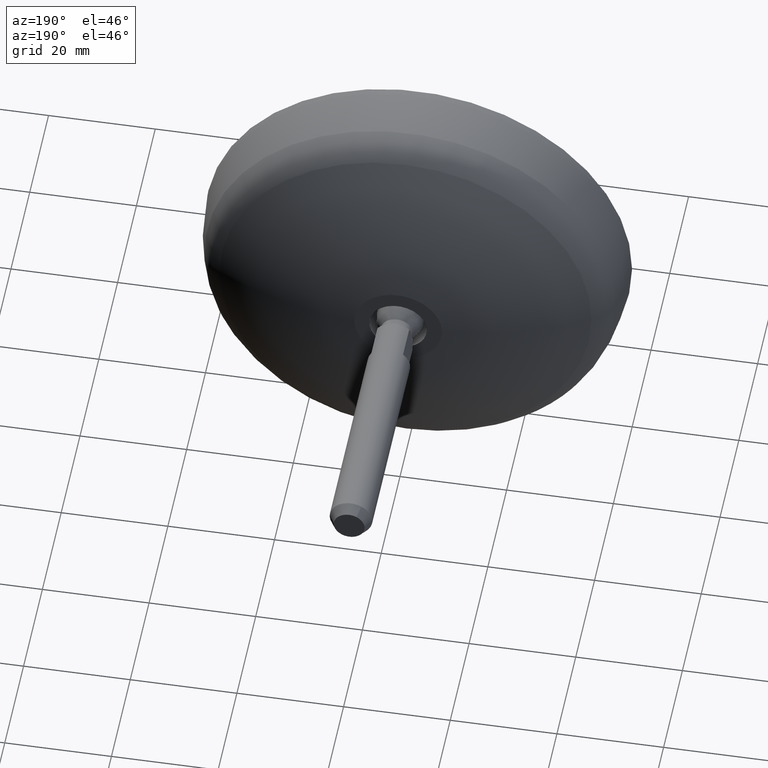
[diagram: clean part render]
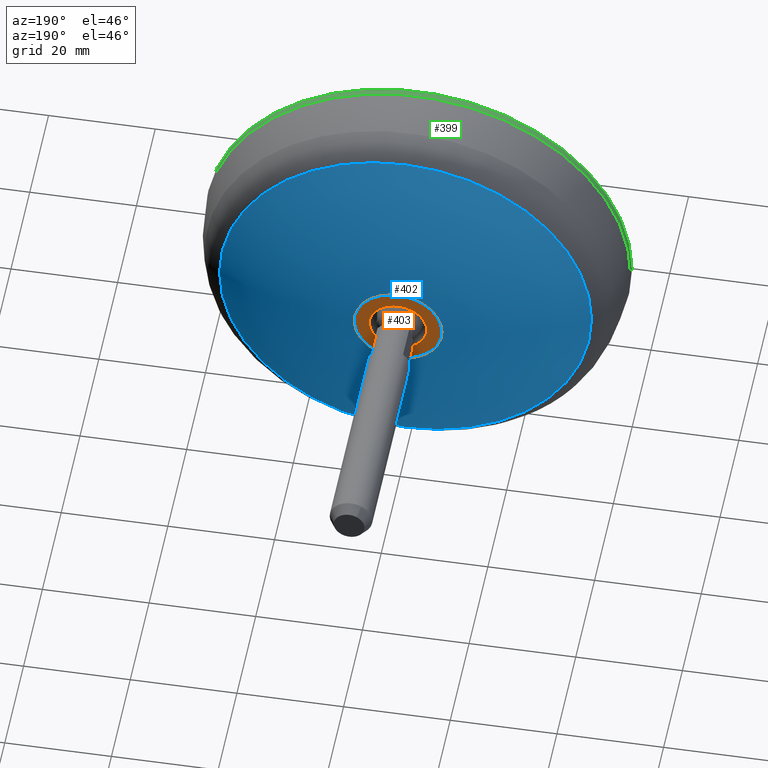
[diagram: same view with three faces highlighted in distinct colors, each labeled with its STEP entity id]
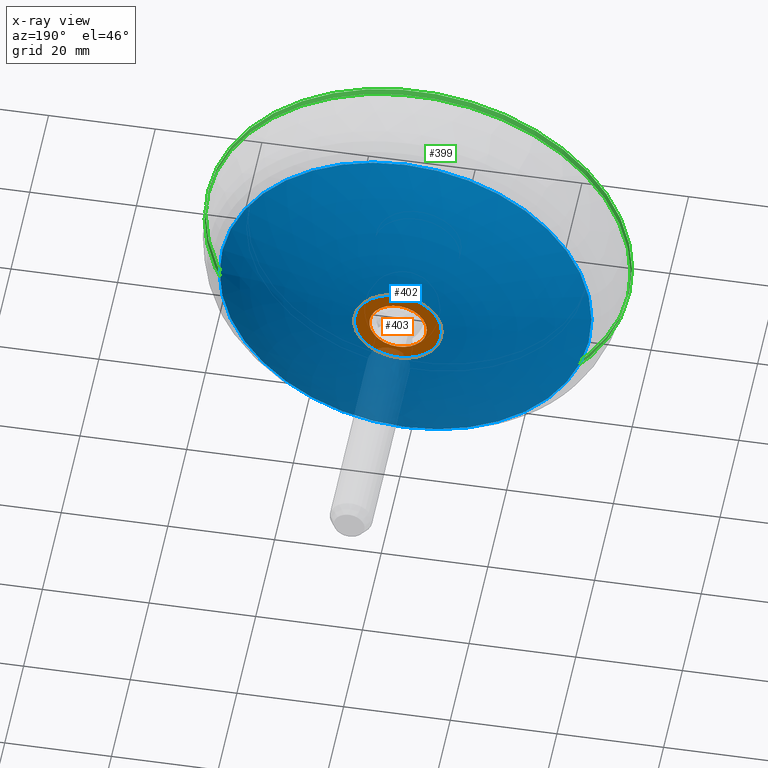
[diagram: x-ray of the same camera — body ghosted, the three highlighted faces saturated]
A machine part, auxiliary view with three faces highlighted in distinct colors.
The next image is the same camera in x-ray (body ghosted, the three faces saturated) — at least one of them is partly hidden behind the body in this view.
Their STEP definitions:

[orange] entity #403 — the highlighted planar face has unit normal (-0, 1, 0).
#75=FACE_BOUND('',#107,.T.);
#82=FACE_OUTER_BOUND('',#106,.T.);
#106=EDGE_LOOP('',(#301,#302));
#107=EDGE_LOOP('',(#303,#304));
#139=CIRCLE('',#482,8.24029769404842);
#140=CIRCLE('',#483,8.24029769404842);
#142=CIRCLE('',#486,5.3823080686156);
#143=CIRCLE('',#487,5.3823080686156);
#180=VERTEX_POINT('',#761);
#181=VERTEX_POINT('',#762);
#182=VERTEX_POINT('',#767);
#183=VERTEX_POINT('',#768);
#226=EDGE_CURVE('',#180,#181,#139,.T.);
#227=EDGE_CURVE('',#181,#180,#140,.T.);
#229=EDGE_CURVE('',#182,#183,#142,.T.);
#230=EDGE_CURVE('',#183,#182,#143,.T.);
#301=ORIENTED_EDGE('',*,*,#226,.T.);
#302=ORIENTED_EDGE('',*,*,#227,.T.);
#303=ORIENTED_EDGE('',*,*,#229,.F.);
#304=ORIENTED_EDGE('',*,*,#230,.F.);
#390=PLANE('',#485);
#403=ADVANCED_FACE('',(#82,#75),#390,.T.);
#482=AXIS2_PLACEMENT_3D('',#763,#568,#569);
#483=AXIS2_PLACEMENT_3D('',#764,#570,#571);
#485=AXIS2_PLACEMENT_3D('',#766,#574,#575);
#486=AXIS2_PLACEMENT_3D('',#769,#576,#577);
#487=AXIS2_PLACEMENT_3D('',#770,#578,#579);
#568=DIRECTION('center_axis',(-1.29031692906312E-13,1.,0.));
#569=DIRECTION('ref_axis',(-1.,-1.2903169675847E-13,0.));
#570=DIRECTION('center_axis',(-1.29031692906312E-13,1.,0.));
#571=DIRECTION('ref_axis',(-1.,-1.2903169675847E-13,0.));
#574=DIRECTION('center_axis',(-1.29031692906312E-13,1.,0.));
#575=DIRECTION('ref_axis',(0.,0.,1.));
#576=DIRECTION('center_axis',(-1.29031692906312E-13,1.,0.));
#577=DIRECTION('ref_axis',(-1.,-1.29031696758471E-13,0.));
#578=DIRECTION('center_axis',(-1.29031692906312E-13,1.,0.));
#579=DIRECTION('ref_axis',(-1.,-1.29031696758471E-13,0.));
#761=CARTESIAN_POINT('',(-8.24029769405126,22.0292874727661,0.));
#762=CARTESIAN_POINT('',(-2.83729285384003E-12,22.0292874727671,-8.24029769404842));
#763=CARTESIAN_POINT('Origin',(-2.8358149179832E-12,22.0292874727671,0.));
#764=CARTESIAN_POINT('Origin',(-2.8358149179832E-12,22.0292874727671,0.));
#766=CARTESIAN_POINT('Origin',(-6.81130288133485,22.0292874727661,0.));
#767=CARTESIAN_POINT('',(-5.38230806861844,22.0292874727661,0.));
#768=CARTESIAN_POINT('',(-2.83648539659409E-12,22.0292874727667,-5.3823080686156));
#769=CARTESIAN_POINT('Origin',(-2.83581491798315E-12,22.0292874727667,0.));
#770=CARTESIAN_POINT('Origin',(-2.83581491798315E-12,22.0292874727667,0.));

[blue] entity #402 — the highlighted face is a freeform B-spline surface patch.
#42=(
BOUNDED_SURFACE()
B_SPLINE_SURFACE(2,2,((#734,#735,#736,#737,#738,#739,#740,#741,#742),(#743,
#744,#745,#746,#747,#748,#749,#750,#751),(#752,#753,#754,#755,#756,#757,
#758,#759,#760)),.UNSPECIFIED.,.F.,.T.,.F.)
B_SPLINE_SURFACE_WITH_KNOTS((3,3),(3,2,2,2,3),(1.0604937002301,1.50279016266621),
(-3.14159265358979,-1.5707963267949,0.,1.5707963267949,3.14159265358979),
 .UNSPECIFIED.)
GEOMETRIC_REPRESENTATION_ITEM()
RATIONAL_B_SPLINE_SURFACE(((1.,0.707106781186548,1.,0.707106781186548,1.,
0.707106781186548,1.,0.707106781186548,1.),(0.975646227991165,0.689886063851629,
0.975646227991165,0.689886063851629,0.975646227991165,0.689886063851629,
0.975646227991165,0.689886063851629,0.975646227991165),(1.,0.707106781186548,
1.,0.707106781186548,1.,0.707106781186548,1.,0.707106781186548,1.)))
REPRESENTATION_ITEM('')
SURFACE()
);
#81=FACE_OUTER_BOUND('',#105,.T.);
#105=EDGE_LOOP('',(#295,#296,#297,#298,#299,#300));
#136=CIRCLE('',#479,34.8694444341819);
#137=CIRCLE('',#480,34.8694444341819);
#139=CIRCLE('',#482,8.24029769404842);
#140=CIRCLE('',#483,8.24029769404842);
#141=CIRCLE('',#484,63.3292106186105);
#178=VERTEX_POINT('',#729);
#179=VERTEX_POINT('',#730);
#180=VERTEX_POINT('',#761);
#181=VERTEX_POINT('',#762);
#223=EDGE_CURVE('',#178,#179,#136,.T.);
#224=EDGE_CURVE('',#179,#178,#137,.T.);
#226=EDGE_CURVE('',#180,#181,#139,.T.);
#227=EDGE_CURVE('',#181,#180,#140,.T.);
#228=EDGE_CURVE('',#181,#179,#141,.T.);
#295=ORIENTED_EDGE('',*,*,#226,.F.);
#296=ORIENTED_EDGE('',*,*,#227,.F.);
#297=ORIENTED_EDGE('',*,*,#228,.T.);
#298=ORIENTED_EDGE('',*,*,#224,.T.);
#299=ORIENTED_EDGE('',*,*,#223,.T.);
#300=ORIENTED_EDGE('',*,*,#228,.F.);
#402=ADVANCED_FACE('',(#81),#42,.F.);
#479=AXIS2_PLACEMENT_3D('',#731,#562,#563);
#480=AXIS2_PLACEMENT_3D('',#732,#564,#565);
#482=AXIS2_PLACEMENT_3D('',#763,#568,#569);
#483=AXIS2_PLACEMENT_3D('',#764,#570,#571);
#484=AXIS2_PLACEMENT_3D('',#765,#572,#573);
#562=DIRECTION('center_axis',(-1.29031692906312E-13,1.,0.));
#563=DIRECTION('ref_axis',(-1.,-1.2903169675847E-13,0.));
#564=DIRECTION('center_axis',(-1.29031692906312E-13,1.,0.));
#565=DIRECTION('ref_axis',(-1.,-1.2903169675847E-13,0.));
#568=DIRECTION('center_axis',(-1.29031692906312E-13,1.,0.));
#569=DIRECTION('ref_axis',(-1.,-1.2903169675847E-13,0.));
#570=DIRECTION('center_axis',(-1.29031692906312E-13,1.,0.));
#571=DIRECTION('ref_axis',(-1.,-1.2903169675847E-13,0.));
#572=DIRECTION('center_axis',(-1.,-1.29031692906312E-13,1.22464679914734E-16));
#573=DIRECTION('ref_axis',(-1.22464679914734E-16,0.,-1.));
#729=CARTESIAN_POINT('',(-34.8694444341837,14.1073263479693,0.));
#730=CARTESIAN_POINT('',(-1.81869971601882E-12,14.1073263479738,-34.8694444341819));
#731=CARTESIAN_POINT('Origin',(-1.81363086291312E-12,14.1073263479738,0.));
#732=CARTESIAN_POINT('Origin',(-1.81363086291312E-12,14.1073263479738,0.));
#734=CARTESIAN_POINT('Ctrl Pts',(-1.81409965335046E-12,14.1073263479738,
-34.8694444341819));
#735=CARTESIAN_POINT('Ctrl Pts',(-34.8694444341837,14.1073263479693,-34.8694444341819));
#736=CARTESIAN_POINT('Ctrl Pts',(-34.8694444341837,14.1073263479693,0.));
#737=CARTESIAN_POINT('Ctrl Pts',(-34.8694444341837,14.1073263479693,34.8694444341819));
#738=CARTESIAN_POINT('Ctrl Pts',(-1.81409965335046E-12,14.1073263479738,
34.8694444341819));
#739=CARTESIAN_POINT('Ctrl Pts',(34.8694444341801,14.1073263479783,34.8694444341819));
#740=CARTESIAN_POINT('Ctrl Pts',(34.8694444341801,14.1073263479783,0.));
#741=CARTESIAN_POINT('Ctrl Pts',(34.8694444341801,14.1073263479783,-34.8694444341819));
#742=CARTESIAN_POINT('Ctrl Pts',(-1.81409965335046E-12,14.1073263479738,
-34.8694444341819));
#743=CARTESIAN_POINT('Ctrl Pts',(-2.71144212204615E-12,21.0617609406226,
-22.4454000280332));
#744=CARTESIAN_POINT('Ctrl Pts',(-22.4454000280359,21.0617609406197,-22.4454000280332));
#745=CARTESIAN_POINT('Ctrl Pts',(-22.4454000280359,21.0617609406197,-5.730158254838E-28));
#746=CARTESIAN_POINT('Ctrl Pts',(-22.4454000280359,21.0617609406197,22.4454000280332));
#747=CARTESIAN_POINT('Ctrl Pts',(-2.71144212204615E-12,21.0617609406226,
22.4454000280332));
#748=CARTESIAN_POINT('Ctrl Pts',(22.4454000280305,21.0617609406255,22.4454000280332));
#749=CARTESIAN_POINT('Ctrl Pts',(22.4454000280305,21.0617609406255,5.730158254838E-28));
#750=CARTESIAN_POINT('Ctrl Pts',(22.4454000280305,21.0617609406255,-22.4454000280332));
#751=CARTESIAN_POINT('Ctrl Pts',(-2.71144212204615E-12,21.0617609406226,
-22.4454000280332));
#752=CARTESIAN_POINT('Ctrl Pts',(-2.83628370842053E-12,22.0292874727671,
-8.24029769404842));
#753=CARTESIAN_POINT('Ctrl Pts',(-8.24029769405125,22.0292874727661,-8.24029769404842));
#754=CARTESIAN_POINT('Ctrl Pts',(-8.24029769405126,22.0292874727661,-1.0097419586829E-27));
#755=CARTESIAN_POINT('Ctrl Pts',(-8.24029769405125,22.0292874727661,8.24029769404842));
#756=CARTESIAN_POINT('Ctrl Pts',(-2.83628370842053E-12,22.0292874727671,
8.24029769404842));
#757=CARTESIAN_POINT('Ctrl Pts',(8.24029769404558,22.0292874727682,8.24029769404842));
#758=CARTESIAN_POINT('Ctrl Pts',(8.24029769404558,22.0292874727682,1.0097419586829E-27));
#759=CARTESIAN_POINT('Ctrl Pts',(8.24029769404558,22.0292874727682,-8.24029769404842));
#760=CARTESIAN_POINT('Ctrl Pts',(-2.83628370842053E-12,22.0292874727671,
-8.24029769404842));
#761=CARTESIAN_POINT('',(-8.24029769405126,22.0292874727661,0.));
#762=CARTESIAN_POINT('',(-2.83729285384003E-12,22.0292874727671,-8.24029769404842));
#763=CARTESIAN_POINT('Origin',(-2.8358149179832E-12,22.0292874727671,0.));
#764=CARTESIAN_POINT('Origin',(-2.8358149179832E-12,22.0292874727671,0.));
#765=CARTESIAN_POINT('Origin',(5.31582082957615E-12,-41.1535358957333,-3.93683992602));

[green] entity #399 — the highlighted conical surface has half-angle 2 deg.
#46=LINE('',#695,#58);
#58=VECTOR('',#553,39.9666231759217);
#70=CONICAL_SURFACE('',#471,39.9666231759217,0.0349065852914248);
#78=FACE_OUTER_BOUND('',#102,.T.);
#102=EDGE_LOOP('',(#275,#276,#277,#278,#279,#280,#281));
#126=CIRCLE('',#467,39.9877846225111);
#127=CIRCLE('',#468,39.9877846225111);
#130=CIRCLE('',#472,39.9454617293322);
#131=CIRCLE('',#473,39.9454617293322);
#132=CIRCLE('',#474,39.9454617293322);
#169=VERTEX_POINT('',#680);
#170=VERTEX_POINT('',#681);
#173=VERTEX_POINT('',#689);
#174=VERTEX_POINT('',#690);
#175=VERTEX_POINT('',#692);
#212=EDGE_CURVE('',#169,#170,#126,.T.);
#213=EDGE_CURVE('',#170,#169,#127,.T.);
#216=EDGE_CURVE('',#173,#174,#130,.T.);
#217=EDGE_CURVE('',#175,#173,#131,.T.);
#218=EDGE_CURVE('',#174,#175,#132,.T.);
#219=EDGE_CURVE('',#174,#170,#46,.T.);
#275=ORIENTED_EDGE('',*,*,#216,.F.);
#276=ORIENTED_EDGE('',*,*,#217,.F.);
#277=ORIENTED_EDGE('',*,*,#218,.F.);
#278=ORIENTED_EDGE('',*,*,#219,.T.);
#279=ORIENTED_EDGE('',*,*,#213,.T.);
#280=ORIENTED_EDGE('',*,*,#212,.T.);
#281=ORIENTED_EDGE('',*,*,#219,.F.);
#399=ADVANCED_FACE('',(#78),#70,.T.);
#467=AXIS2_PLACEMENT_3D('',#682,#537,#538);
#468=AXIS2_PLACEMENT_3D('',#683,#539,#540);
#471=AXIS2_PLACEMENT_3D('',#688,#545,#546);
#472=AXIS2_PLACEMENT_3D('',#691,#547,#548);
#473=AXIS2_PLACEMENT_3D('',#693,#549,#550);
#474=AXIS2_PLACEMENT_3D('',#694,#551,#552);
#537=DIRECTION('center_axis',(-1.29031692906312E-13,1.,0.));
#538=DIRECTION('ref_axis',(-1.,-1.2903169675847E-13,0.));
#539=DIRECTION('center_axis',(-1.29031692906312E-13,1.,0.));
#540=DIRECTION('ref_axis',(-1.,-1.2903169675847E-13,0.));
#545=DIRECTION('center_axis',(1.29031692906312E-13,-1.,0.));
#546=DIRECTION('ref_axis',(-1.,-1.2903169675847E-13,0.));
#547=DIRECTION('center_axis',(-1.29031692906312E-13,1.,0.));
#548=DIRECTION('ref_axis',(-1.,-1.2903169675847E-13,0.));
#549=DIRECTION('center_axis',(-1.29031692906312E-13,1.,0.));
#550=DIRECTION('ref_axis',(-1.,-1.2903169675847E-13,0.));
#551=DIRECTION('center_axis',(-1.29031692906312E-13,1.,0.));
#552=DIRECTION('ref_axis',(-1.,-1.2903169675847E-13,0.));
#553=DIRECTION('',(0.0348994969540149,-0.999390827010313,-4.27395572364292E-18));
#680=CARTESIAN_POINT('',(-39.9877846225111,2.57209152067228E-8,0.));
#681=CARTESIAN_POINT('',(39.9877846225111,2.57312345042227E-8,-4.8970912442952E-15));
#682=CARTESIAN_POINT('Origin',(6.66133482827207E-15,2.57260748982987E-8,
0.));
#683=CARTESIAN_POINT('Origin',(6.66133482827207E-15,2.57260748982987E-8,
0.));
#688=CARTESIAN_POINT('Origin',(-7.15298762427452E-14,0.60598456572425,0.));
#689=CARTESIAN_POINT('',(-39.9454617293324,1.21196910571727,0.));
#690=CARTESIAN_POINT('',(39.9454617293321,1.21196910572758,-4.89190818472898E-15));
#691=CARTESIAN_POINT('Origin',(-1.49721087313763E-13,1.21196910572243,0.));
#692=CARTESIAN_POINT('',(-1.54879859501784E-13,1.21196910572243,-39.9454617293322));
#693=CARTESIAN_POINT('Origin',(-1.49721087313763E-13,1.21196910572243,0.));
#694=CARTESIAN_POINT('Origin',(-1.49721087313763E-13,1.21196910572243,0.));
#695=CARTESIAN_POINT('',(39.9666231759216,0.605984565729407,-4.89449971451209E-15));